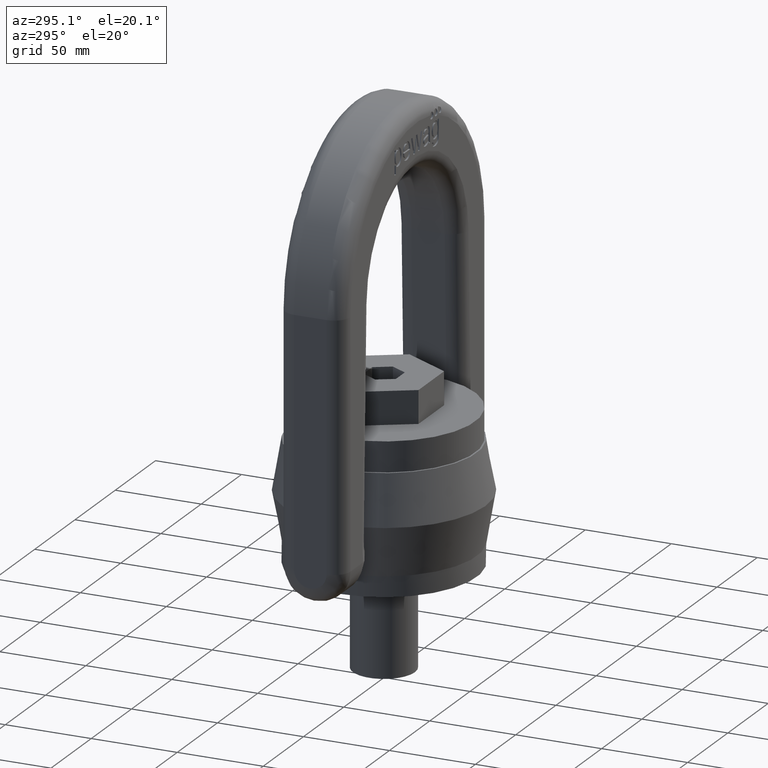
[diagram: clean part render]
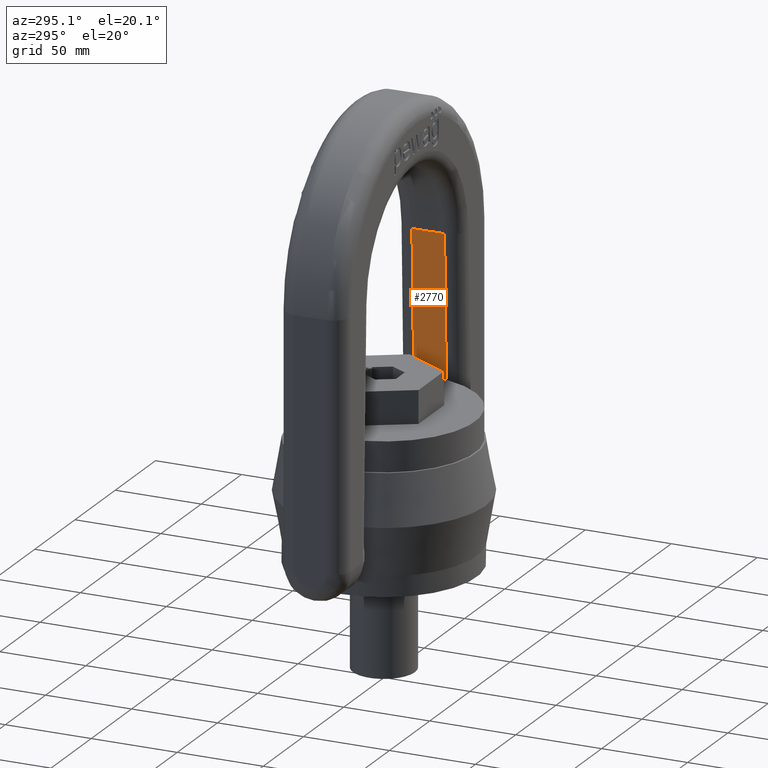
[diagram: same view with one face highlighted and labeled with its STEP entity id]
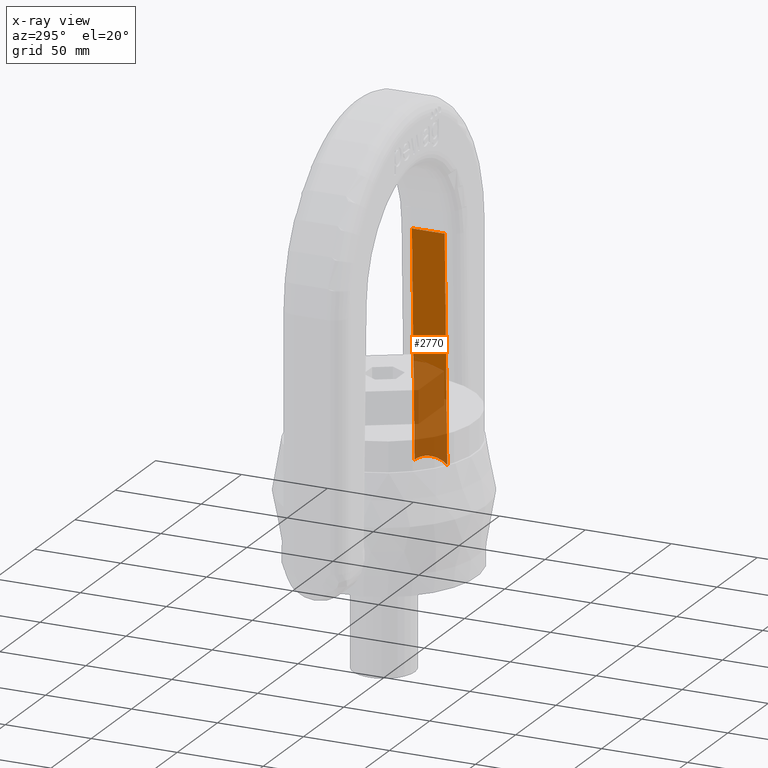
[diagram: x-ray of the same camera — body ghosted, the highlighted face saturated]
A machine part, auxiliary view. The second image highlights one B-rep face of the part: STEP entity #2770.
The next image is the same camera in x-ray: the body ghosted, the highlighted face saturated — about 40% of this face is hidden behind the body in this view.
In plain terms, the highlighted planar face has unit normal (0.9997, 0, 0.0255).
Its self-contained STEP definition (entity closure, byte-faithful):
#312=ELLIPSE('',#5655,14.2546389411732,14.25);
#1839=LINE('',#7077,#2121);
#1840=LINE('',#7081,#2122);
#1841=LINE('',#7085,#2123);
#2121=VECTOR('',#5990,1.);
#2122=VECTOR('',#5995,1.);
#2123=VECTOR('',#5998,1.);
#2432=FACE_OUTER_BOUND('',#3106,.T.);
#2648=PLANE('',#5656);
#2770=ADVANCED_FACE('',(#2432),#2648,.F.);
#3106=EDGE_LOOP('',(#3525,#3526,#3527,#3528));
#3525=ORIENTED_EDGE('',*,*,#5084,.T.);
#3526=ORIENTED_EDGE('',*,*,#5086,.T.);
#3527=ORIENTED_EDGE('',*,*,#5087,.F.);
#3528=ORIENTED_EDGE('',*,*,#5088,.T.);
#4669=VERTEX_POINT('',#7076);
#4670=VERTEX_POINT('',#7078);
#4671=VERTEX_POINT('',#7082);
#4672=VERTEX_POINT('',#7084);
#5084=EDGE_CURVE('',#4670,#4669,#1839,.T.);
#5086=EDGE_CURVE('',#4669,#4671,#1840,.T.);
#5087=EDGE_CURVE('',#4672,#4671,#312,.T.);
#5088=EDGE_CURVE('',#4672,#4670,#1841,.T.);
#5655=AXIS2_PLACEMENT_3D('',#7083,#5996,#5997);
#5656=AXIS2_PLACEMENT_3D('',#7086,#5999,#6000);
#5990=DIRECTION('',(0.,1.,0.));
#5995=DIRECTION('',(0.0255100308212767,-5.97677249125002E-17,-0.999674566210173));
#5996=DIRECTION('',(-0.999674566210173,0.,-0.0255100308212767));
#5997=DIRECTION('',(-0.0255100308212767,0.,0.999674566210173));
#5998=DIRECTION('',(-0.0255100308212767,0.,0.999674566210173));
#5999=DIRECTION('',(0.999674566210173,0.,0.0255100308212767));
#6000=DIRECTION('',(0.0255100308212767,0.,-0.999674566210173));
#7076=CARTESIAN_POINT('',(54.9821011415595,9.49999999999985,167.40305169517));
#7077=CARTESIAN_POINT('',(54.9821011415595,-19.,167.40305169517));
#7078=CARTESIAN_POINT('',(54.9821011415595,-9.5,167.40305169517));
#7081=CARTESIAN_POINT('',(54.9821011415595,9.49999999999985,167.40305169517));
#7082=CARTESIAN_POINT('',(58.320709071532,9.4999999999998,36.5713228931242));
#7083=CARTESIAN_POINT('',(58.5917475509779,0.,25.95));
#7084=CARTESIAN_POINT('',(58.320709071532,-9.5,36.5713228931241));
#7085=CARTESIAN_POINT('',(54.9821011415595,-9.5,167.40305169517));
#7086=CARTESIAN_POINT('',(54.9821011415595,-19.,167.40305169517));